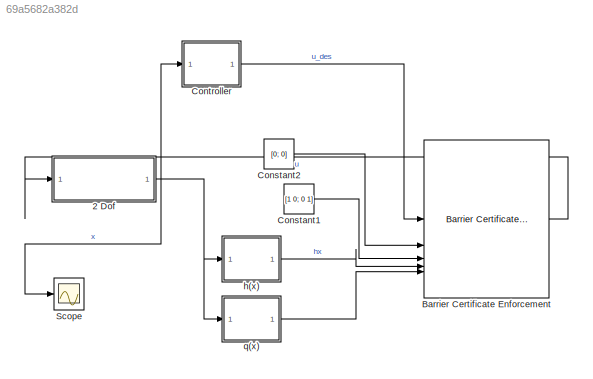
MODEL slx_69a5682a382d
KIND model
CONFIG AbsTol = auto
CONFIG EnableMultiTasking = off
CONFIG FixedStep = auto
CONFIG MaxStep = auto
CONFIG MinStep = auto
CONFIG RelTol = 1e-3
CONFIG SampleTimeConstraint = Unconstrained
CONFIG SolverName = VariableStepAuto
CONFIG StartTime = 0.0
CONFIG StopTime = Tf
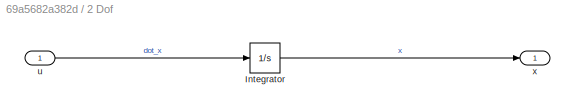
BLOCK [SubSystem] 2 Dof
BLOCK [Integrator] 2 Dof/Integrator
  InitialCondition = x_init
BLOCK [Inport] 2 Dof/u
BLOCK [Outport] 2 Dof/x
BLOCK [Reference] Barrier Certificate Enforcement  REF=slctrl_constraint/Barrier Certificate Enforcement
  LibrarySourceBlock = slctrlblks/Constraint Control/Barrier Certificate Enforcement
  SourceBlock = slctrl_constraint/Barrier Certificate Enforcement
  SourceType = Barrier Certificate Enforcement
BLOCK [Constant] Constant1
  Value = [1 0; 0 1]
BLOCK [Constant] Constant2
  Value = [0; 0]
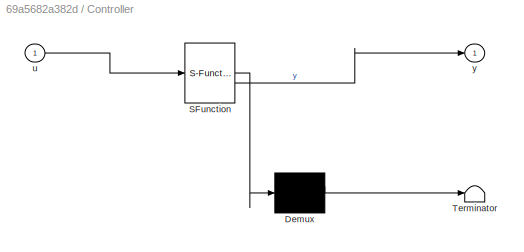
BLOCK [SubSystem] Controller
  ErrorFcn = Stateflow.Translate.translate
  PermitHierarchicalResolution = ExplicitOnly
  SFBlockType = MATLAB Function
  TreatAsAtomicUnit = on
BLOCK [Demux] Controller/ Demux 
  Outputs = 1
BLOCK [S-Function] Controller/ SFunction 
  EnableBusSupport = on
  FunctionName = sf_sfun
  PortCounts = [1 2]
  SFcnIsStateOwnerBlock = off
  SFunctionDeploymentMode = off
  Tag = Stateflow S-Function 3
BLOCK [Terminator] Controller/ Terminator 
BLOCK [Inport] Controller/u
BLOCK [Outport] Controller/y
BLOCK [Scope] Scope
  Floating = off
  NumInputPorts = 1
  ScopeSpecificationString = Simulink.scopes.TimeScopeBlockCfg('CurrentConfiguration', extmgr.ConfigurationSet(extmgr.Configuration('Core','General UI',true),extmgr.Configuration('Core','Source UI',true),extmgr.Configuration('Sources','WiredSimulink',true),extmgr.Configuration('Visuals','Time Domain',true,'SerializedDisplays',{struct('MinYLimReal','-0.3125','MaxYLimReal','2.8125','YLabelReal','','MinYLimMag','0.00000','MaxYLi...<+1461ch>
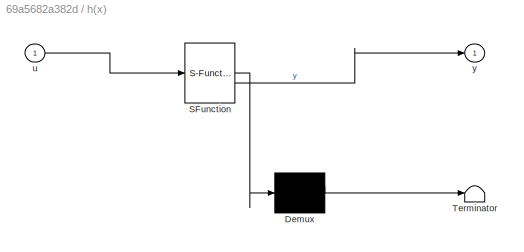
BLOCK [SubSystem] h(x)
  ErrorFcn = Stateflow.Translate.translate
  PermitHierarchicalResolution = ExplicitOnly
  SFBlockType = MATLAB Function
  TreatAsAtomicUnit = on
BLOCK [Demux] h(x)/ Demux 
  Outputs = 1
BLOCK [S-Function] h(x)/ SFunction 
  EnableBusSupport = on
  FunctionName = sf_sfun
  PortCounts = [1 2]
  SFcnIsStateOwnerBlock = off
  SFunctionDeploymentMode = off
  Tag = Stateflow S-Function 2
BLOCK [Terminator] h(x)/ Terminator 
BLOCK [Inport] h(x)/u
BLOCK [Outport] h(x)/y
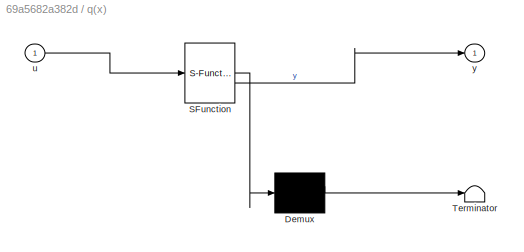
BLOCK [SubSystem] q(x)
  ErrorFcn = Stateflow.Translate.translate
  PermitHierarchicalResolution = ExplicitOnly
  SFBlockType = MATLAB Function
  TreatAsAtomicUnit = on
BLOCK [Demux] q(x)/ Demux 
  Outputs = 1
BLOCK [S-Function] q(x)/ SFunction 
  EnableBusSupport = on
  FunctionName = sf_sfun
  PortCounts = [1 2]
  SFcnIsStateOwnerBlock = off
  SFunctionDeploymentMode = off
  Tag = Stateflow S-Function 1
BLOCK [Terminator] q(x)/ Terminator 
BLOCK [Inport] q(x)/u
BLOCK [Outport] q(x)/y
LINE 2 Dof/Integrator:1 -> 2 Dof/x:1
LINE 2 Dof/u:1 -> 2 Dof/Integrator:1
NET 2 Dof:1 -> Controller:1, Scope:1, h(x):1, q(x):1
LINE Barrier Certificate Enforcement:1 -> 2 Dof:1
LINE Constant1:1 -> Barrier Certificate Enforcement:3
LINE Constant2:1 -> Barrier Certificate Enforcement:2
LINE Controller:1 -> Barrier Certificate Enforcement:1
LINE h(x):1 -> Barrier Certificate Enforcement:4
LINE q(x):1 -> Barrier Certificate Enforcement:5
note: NET lines group one-source signal fan-out (src -> all destinations, sorted); 1:1 wires keep LINE
CHART h(x) states=1 transitions=1
  STATE_LABEL 'eML_blk_kernel()'
  STATE_LABEL 'SCRIPT:\nfunction y = h(u)\n\n    x = u;\n    x_obs = [1; 1];\n    R = 0.3;\n\ny = norm(x - x_obs)^2 - R^2;\n'
CHART Controller states=1 transitions=1
  STATE_LABEL 'eML_blk_kernel()'
  STATE_LABEL 'SCRIPT:\nfunction y = controller(u)\n\n    x = u;\n    x_tgt = [2; 2.5];\n    K = 1;\n\ny = K*(x_tgt - x);\n'
CHART q(x) states=1 transitions=1
  STATE_LABEL 'eML_blk_kernel()'
  STATE_LABEL "SCRIPT:\nfunction y = q(u)\n    \nx = u;\n\nx_obs = [1; 1];\n\n\n\ny = 2*(x-x_obs)';\n"
CHART  states=0 transitions=0
CHART  states=0 transitions=0
CHART  states=0 transitions=0
